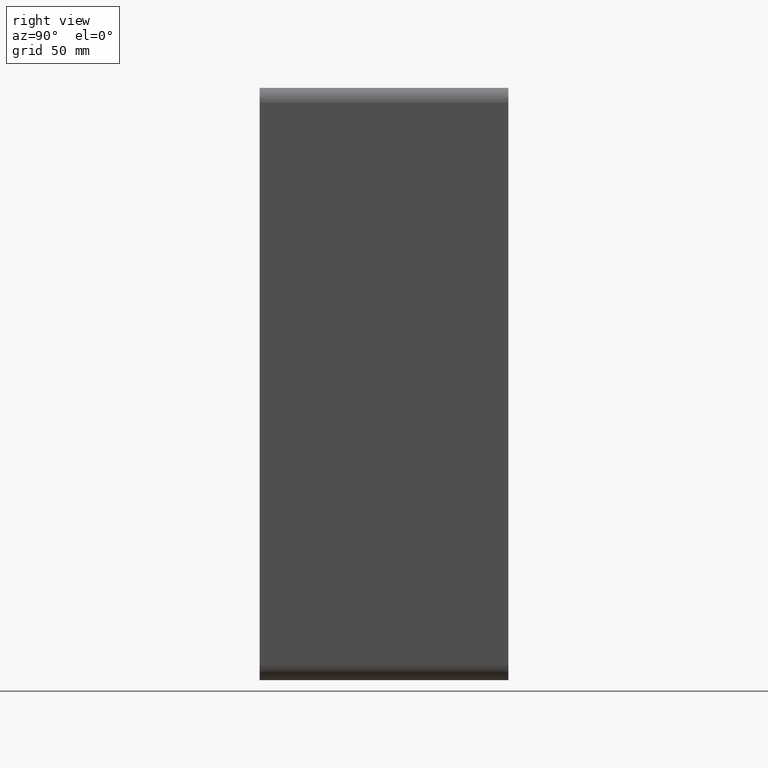
[diagram: clean part render]
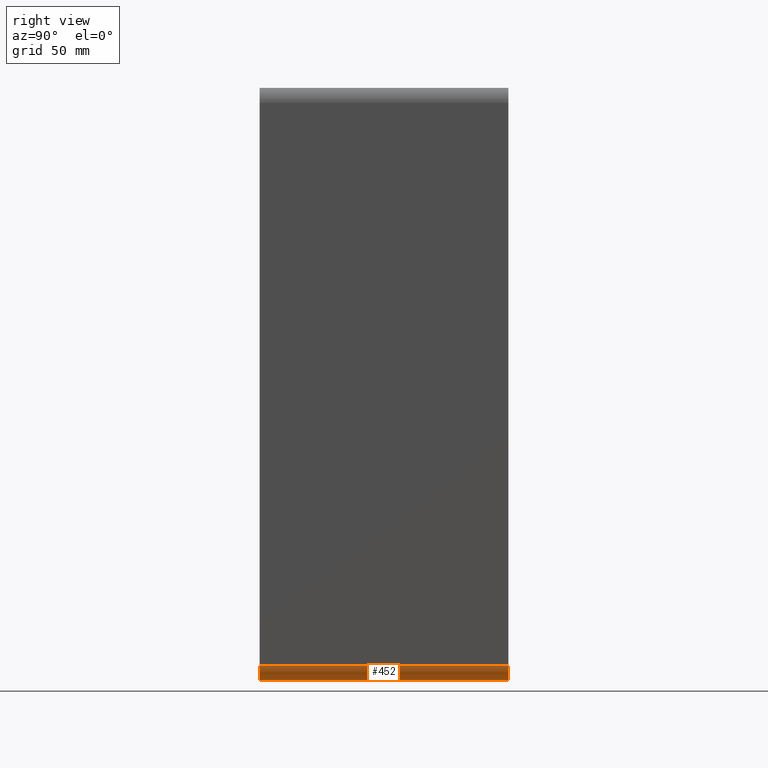
[diagram: same view with one face highlighted and labeled with its STEP entity id]
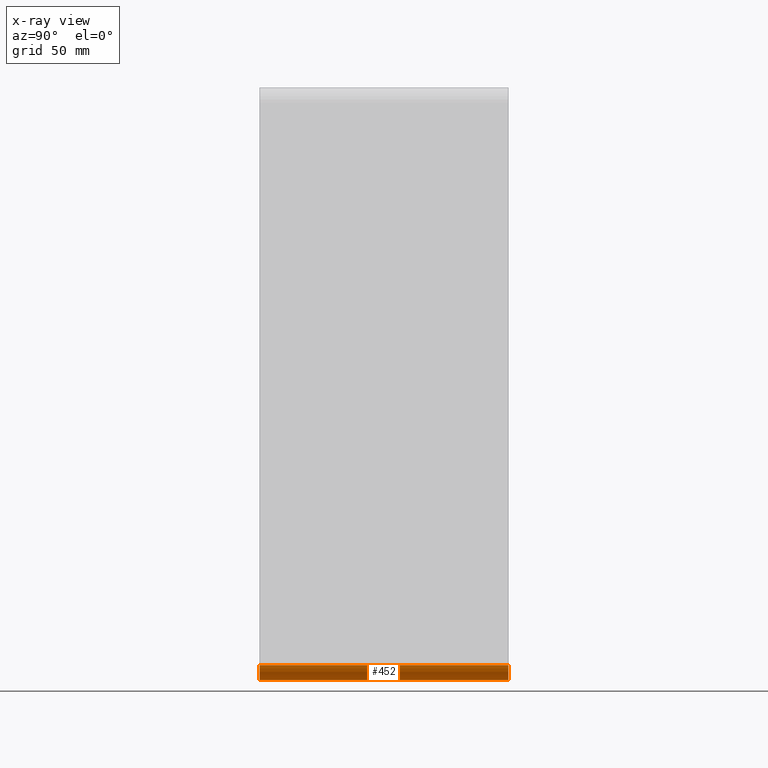
[diagram: x-ray of the same camera — body ghosted, the highlighted face saturated]
A machine part, right view. The second image highlights one B-rep face of the part: STEP entity #452.
The next image is the same camera in x-ray: the body ghosted, the highlighted face saturated — about 0% of this face is hidden behind the body in this view.
In plain terms, the highlighted cylindrical surface (edge-blend (fillet) strip) has radius 6 mm, axis along (0, 1, 0).
Its self-contained STEP definition (entity closure, byte-faithful):
#197=CARTESIAN_POINT('',(70.25,-3.0,-113.00000000000004));
#198=VERTEX_POINT('',#197);
#250=CARTESIAN_POINT('',(64.25,-3.0,-119.00000000000003));
#251=VERTEX_POINT('',#250);
#258=CARTESIAN_POINT('',(64.25,-3.0,-113.00000000000004));
#259=DIRECTION('',(0.0,-1.0,0.0));
#260=DIRECTION('',(1.0,0.0,0.0));
#261=AXIS2_PLACEMENT_3D('',#258,#259,#260);
#262=CIRCLE('',#261,6.000000000000001);
#263=EDGE_CURVE('',#251,#198,#262,.T.);
#410=CARTESIAN_POINT('',(64.25,97.0,-119.00000000000003));
#411=VERTEX_POINT('',#410);
#418=CARTESIAN_POINT('',(64.25,-3.0,-119.00000000000003));
#419=DIRECTION('',(0.0,1.0,0.0));
#420=VECTOR('',#419,100.0);
#421=LINE('',#418,#420);
#422=EDGE_CURVE('',#251,#411,#421,.T.);
#428=CARTESIAN_POINT('',(64.25,0.0,-113.00000000000004));
#429=DIRECTION('',(0.0,1.0,0.0));
#430=DIRECTION('',(1.0,0.0,0.0));
#431=AXIS2_PLACEMENT_3D('',#428,#429,#430);
#432=CYLINDRICAL_SURFACE('',#431,6.000000000000001);
#433=ORIENTED_EDGE('',*,*,#422,.T.);
#434=CARTESIAN_POINT('',(70.25,97.0,-113.00000000000004));
#435=VERTEX_POINT('',#434);
#436=CARTESIAN_POINT('',(64.25,97.0,-113.00000000000004));
#437=DIRECTION('',(0.0,1.0,0.0));
#438=DIRECTION('',(1.0,0.0,0.0));
#439=AXIS2_PLACEMENT_3D('',#436,#437,#438);
#440=CIRCLE('',#439,6.000000000000001);
#441=EDGE_CURVE('',#435,#411,#440,.T.);
#442=ORIENTED_EDGE('',*,*,#441,.F.);
#443=CARTESIAN_POINT('',(70.25,-3.0,-113.00000000000004));
#444=DIRECTION('',(0.0,1.0,0.0));
#445=VECTOR('',#444,100.0);
#446=LINE('',#443,#445);
#447=EDGE_CURVE('',#198,#435,#446,.T.);
#448=ORIENTED_EDGE('',*,*,#447,.F.);
#449=ORIENTED_EDGE('',*,*,#263,.F.);
#450=EDGE_LOOP('',(#433,#442,#448,#449));
#451=FACE_OUTER_BOUND('',#450,.T.);
#452=ADVANCED_FACE('',(#451),#432,.T.);